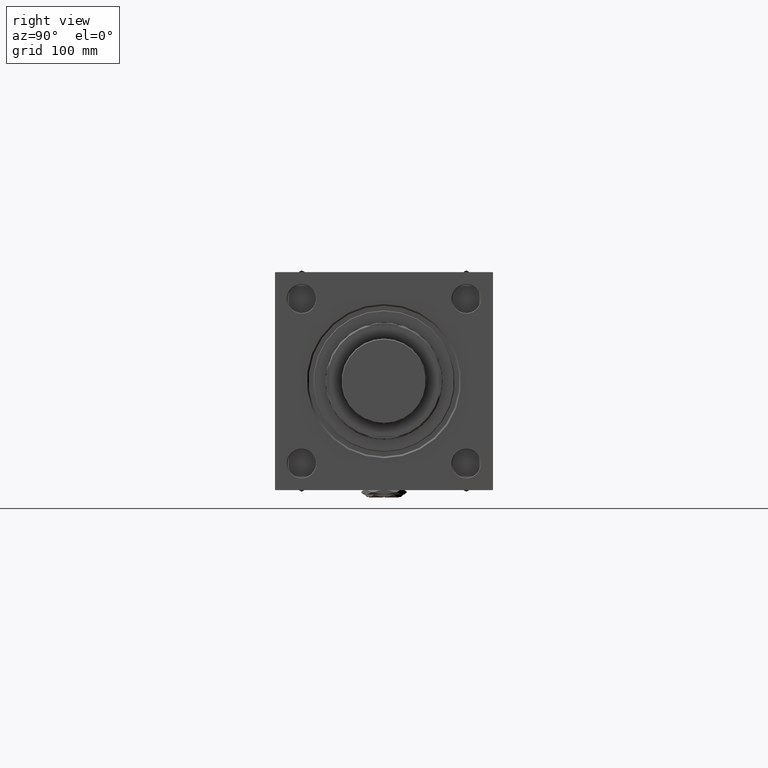
[diagram: clean part render]
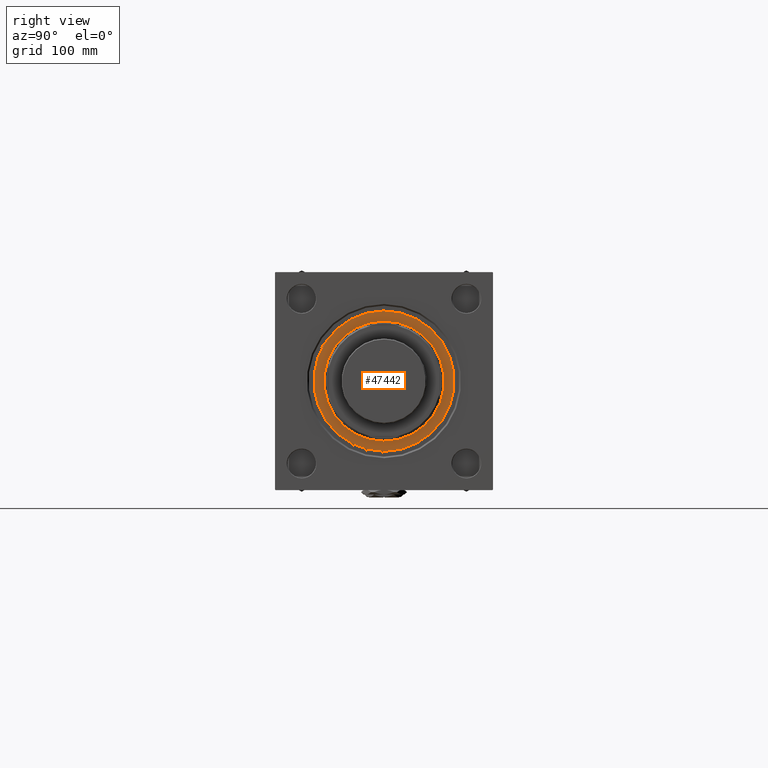
[diagram: same view with one face highlighted and labeled with its STEP entity id]
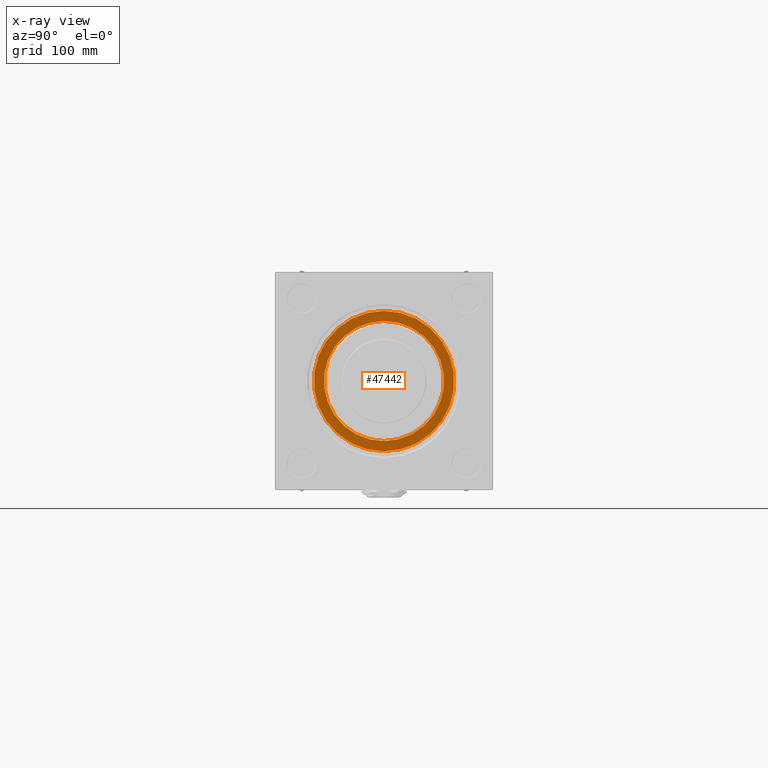
[diagram: x-ray of the same camera — body ghosted, the highlighted face saturated]
A machine part, right view. The second image highlights one B-rep face of the part: STEP entity #47442.
The next image is the same camera in x-ray: the body ghosted, the highlighted face saturated — about 0% of this face is hidden behind the body in this view.
In plain terms, the highlighted planar face has unit normal (1, 0, 0).
Its self-contained STEP definition (entity closure, byte-faithful):
#1467 = VERTEX_POINT ( 'NONE', #15548 ) ;
#2128 = VERTEX_POINT ( 'NONE', #21481 ) ;
#2344 = EDGE_LOOP ( 'NONE', ( #36386, #6546 ) ) ;
#2449 = CIRCLE ( 'NONE', #15286, 56.49999999999999289 ) ;
#4747 = AXIS2_PLACEMENT_3D ( 'NONE', #45782, #29679, #38013 ) ;
#4783 = PLANE ( 'NONE',  #12698 ) ;
#6546 = ORIENTED_EDGE ( 'NONE', *, *, #48469, .F. ) ;
#8484 = EDGE_LOOP ( 'NONE', ( #28382, #20611 ) ) ;
#12698 = AXIS2_PLACEMENT_3D ( 'NONE', #33143, #32877, #48713 ) ;
#12787 = CARTESIAN_POINT ( 'NONE',  ( 0.000000000000000000, 0.000000000000000000, 35.70000000000000284 ) ) ;
#12965 = VERTEX_POINT ( 'NONE', #28641 ) ;
#15286 = AXIS2_PLACEMENT_3D ( 'NONE', #52875, #45099, #23658 ) ;
#15548 = CARTESIAN_POINT ( 'NONE',  ( 66.00000000000000000, 8.113285044351216187E-15, 35.70000000000000284 ) ) ;
#16024 = FACE_OUTER_BOUND ( 'NONE', #8484, .T. ) ;
#16681 = CIRCLE ( 'NONE', #4747, 66.00000000000000000 ) ;
#17070 = DIRECTION ( 'NONE',  ( 1.000000000000000000, 0.000000000000000000, 0.000000000000000000 ) ) ;
#20611 = ORIENTED_EDGE ( 'NONE', *, *, #31236, .T. ) ;
#21086 = VERTEX_POINT ( 'NONE', #29280 ) ;
#21481 = CARTESIAN_POINT ( 'NONE',  ( -56.49999999999999289, 6.919254415182544548E-15, 35.70000000000000284 ) ) ;
#23658 = DIRECTION ( 'NONE',  ( 1.000000000000000000, 0.000000000000000000, 0.000000000000000000 ) ) ;
#23742 = CARTESIAN_POINT ( 'NONE',  ( 0.000000000000000000, 0.000000000000000000, 35.70000000000000284 ) ) ;
#24416 = EDGE_CURVE ( 'NONE', #12965, #2128, #43840, .T. ) ;
#26255 = CIRCLE ( 'NONE', #32259, 66.00000000000000000 ) ;
#28382 = ORIENTED_EDGE ( 'NONE', *, *, #39050, .T. ) ;
#28641 = CARTESIAN_POINT ( 'NONE',  ( 56.49999999999999289, 0.000000000000000000, 35.70000000000000284 ) ) ;
#29280 = CARTESIAN_POINT ( 'NONE',  ( -66.00000000000000000, 0.000000000000000000, 35.70000000000000284 ) ) ;
#29679 = DIRECTION ( 'NONE',  ( 0.000000000000000000, 0.000000000000000000, 1.000000000000000000 ) ) ;
#31236 = EDGE_CURVE ( 'NONE', #1467, #21086, #16681, .T. ) ;
#32259 = AXIS2_PLACEMENT_3D ( 'NONE', #12787, #45476, #17070 ) ;
#32624 = FACE_BOUND ( 'NONE', #2344, .T. ) ;
#32877 = DIRECTION ( 'NONE',  ( 0.000000000000000000, 0.000000000000000000, 1.000000000000000000 ) ) ;
#33143 = CARTESIAN_POINT ( 'NONE',  ( 0.000000000000000000, 0.000000000000000000, 35.70000000000000284 ) ) ;
#35016 = DIRECTION ( 'NONE',  ( 0.000000000000000000, 0.000000000000000000, 1.000000000000000000 ) ) ;
#35265 = AXIS2_PLACEMENT_3D ( 'NONE', #23742, #35016, #43065 ) ;
#36386 = ORIENTED_EDGE ( 'NONE', *, *, #24416, .F. ) ;
#38013 = DIRECTION ( 'NONE',  ( 1.000000000000000000, 0.000000000000000000, 0.000000000000000000 ) ) ;
#39050 = EDGE_CURVE ( 'NONE', #21086, #1467, #26255, .T. ) ;
#43065 = DIRECTION ( 'NONE',  ( 1.000000000000000000, 0.000000000000000000, 0.000000000000000000 ) ) ;
#43840 = CIRCLE ( 'NONE', #35265, 56.49999999999999289 ) ;
#45099 = DIRECTION ( 'NONE',  ( 0.000000000000000000, 0.000000000000000000, 1.000000000000000000 ) ) ;
#45476 = DIRECTION ( 'NONE',  ( 0.000000000000000000, 0.000000000000000000, 1.000000000000000000 ) ) ;
#45782 = CARTESIAN_POINT ( 'NONE',  ( 0.000000000000000000, 0.000000000000000000, 35.70000000000000284 ) ) ;
#47442 = ADVANCED_FACE ( 'NONE', ( #32624, #16024 ), #4783, .T. ) ;
#48469 = EDGE_CURVE ( 'NONE', #2128, #12965, #2449, .T. ) ;
#48713 = DIRECTION ( 'NONE',  ( 1.000000000000000000, 0.000000000000000000, -0.000000000000000000 ) ) ;
#52875 = CARTESIAN_POINT ( 'NONE',  ( 0.000000000000000000, 0.000000000000000000, 35.70000000000000284 ) ) ;